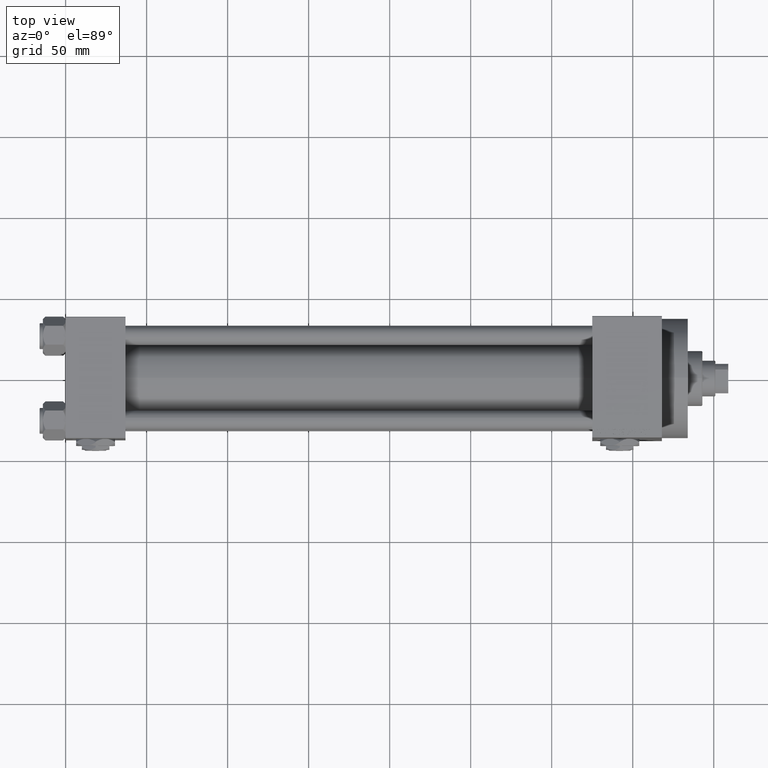
[diagram: clean part render]
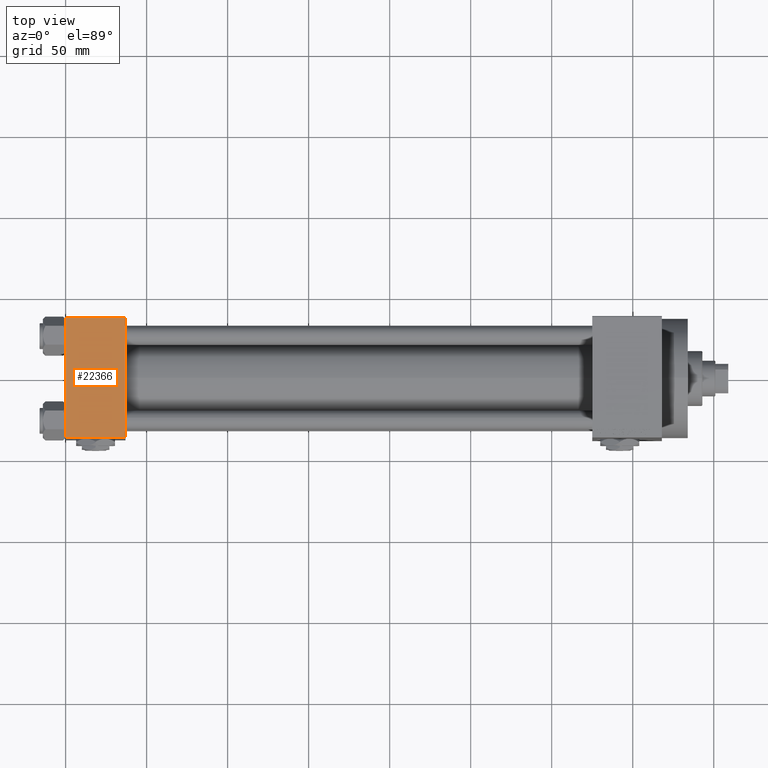
[diagram: same view with one face highlighted and labeled with its STEP entity id]
A machine part, top view. The second image highlights one B-rep face of the part: STEP entity #22366.
In plain terms, the highlighted planar face has unit normal (0, 0, -1).
Its self-contained STEP definition (entity closure, byte-faithful):
#1259 = EDGE_CURVE ( 'NONE', #16160, #1812, #11259, .T. ) ;
#1812 = VERTEX_POINT ( 'NONE', #45279 ) ;
#3861 = VERTEX_POINT ( 'NONE', #12063 ) ;
#4834 = VERTEX_POINT ( 'NONE', #30812 ) ;
#5134 = VECTOR ( 'NONE', #33768, 1000.000000000000000 ) ;
#6155 = CARTESIAN_POINT ( 'NONE',  ( 37.00000000000000000, 37.49999999999999289, 37.50000000000000000 ) ) ;
#6210 = LINE ( 'NONE', #39319, #31166 ) ;
#7864 = LINE ( 'NONE', #27278, #5134 ) ;
#10154 = ORIENTED_EDGE ( 'NONE', *, *, #22583, .T. ) ;
#11259 = LINE ( 'NONE', #22701, #45730 ) ;
#11500 = DIRECTION ( 'NONE',  ( 0.000000000000000000, -1.000000000000000000, -9.251858538542971581E-17 ) ) ;
#12063 = CARTESIAN_POINT ( 'NONE',  ( 0.000000000000000000, -37.00000000000000711, 37.49999999999999289 ) ) ;
#15580 = EDGE_CURVE ( 'NONE', #4834, #3861, #6210, .T. ) ;
#16160 = VERTEX_POINT ( 'NONE', #27213 ) ;
#16668 = DIRECTION ( 'NONE',  ( 0.000000000000000000, -1.000000000000000000, -9.251858538542971581E-17 ) ) ;
#17606 = DIRECTION ( 'NONE',  ( 0.000000000000000000, 1.000000000000000000, 9.251858538542971581E-17 ) ) ;
#17826 = ORIENTED_EDGE ( 'NONE', *, *, #15580, .T. ) ;
#18620 = ORIENTED_EDGE ( 'NONE', *, *, #1259, .F. ) ;
#20240 = AXIS2_PLACEMENT_3D ( 'NONE', #6155, #36525, #17606 ) ;
#22366 = ADVANCED_FACE ( 'NONE', ( #44020 ), #40260, .F. ) ;
#22429 = EDGE_CURVE ( 'NONE', #3861, #1812, #7864, .T. ) ;
#22583 = EDGE_CURVE ( 'NONE', #16160, #4834, #28003, .T. ) ;
#22701 = CARTESIAN_POINT ( 'NONE',  ( 37.00000000000000000, 37.49999999999999289, 37.50000000000000000 ) ) ;
#27213 = CARTESIAN_POINT ( 'NONE',  ( 37.00000000000000000, 36.99999999999999289, 37.50000000000000000 ) ) ;
#27278 = CARTESIAN_POINT ( 'NONE',  ( 37.00000000000000000, -37.00000000000000711, 37.49999999999999289 ) ) ;
#28003 = LINE ( 'NONE', #46473, #37747 ) ;
#30024 = EDGE_LOOP ( 'NONE', ( #17826, #34910, #18620, #10154 ) ) ;
#30812 = CARTESIAN_POINT ( 'NONE',  ( 0.000000000000000000, 36.99999999999999289, 37.50000000000000000 ) ) ;
#31166 = VECTOR ( 'NONE', #16668, 1000.000000000000000 ) ;
#33768 = DIRECTION ( 'NONE',  ( 1.000000000000000000, 0.000000000000000000, 0.000000000000000000 ) ) ;
#34910 = ORIENTED_EDGE ( 'NONE', *, *, #22429, .T. ) ;
#36525 = DIRECTION ( 'NONE',  ( 0.000000000000000000, 9.251858538542971581E-17, -1.000000000000000000 ) ) ;
#37747 = VECTOR ( 'NONE', #46717, 1000.000000000000000 ) ;
#39319 = CARTESIAN_POINT ( 'NONE',  ( 0.000000000000000000, 37.49999999999999289, 37.50000000000000000 ) ) ;
#40260 = PLANE ( 'NONE',  #20240 ) ;
#44020 = FACE_OUTER_BOUND ( 'NONE', #30024, .T. ) ;
#45279 = CARTESIAN_POINT ( 'NONE',  ( 37.00000000000000000, -37.00000000000000711, 37.49999999999999289 ) ) ;
#45730 = VECTOR ( 'NONE', #11500, 1000.000000000000000 ) ;
#46473 = CARTESIAN_POINT ( 'NONE',  ( 0.000000000000000000, 36.99999999999999289, 37.50000000000000000 ) ) ;
#46717 = DIRECTION ( 'NONE',  ( -1.000000000000000000, 0.000000000000000000, 0.000000000000000000 ) ) ;